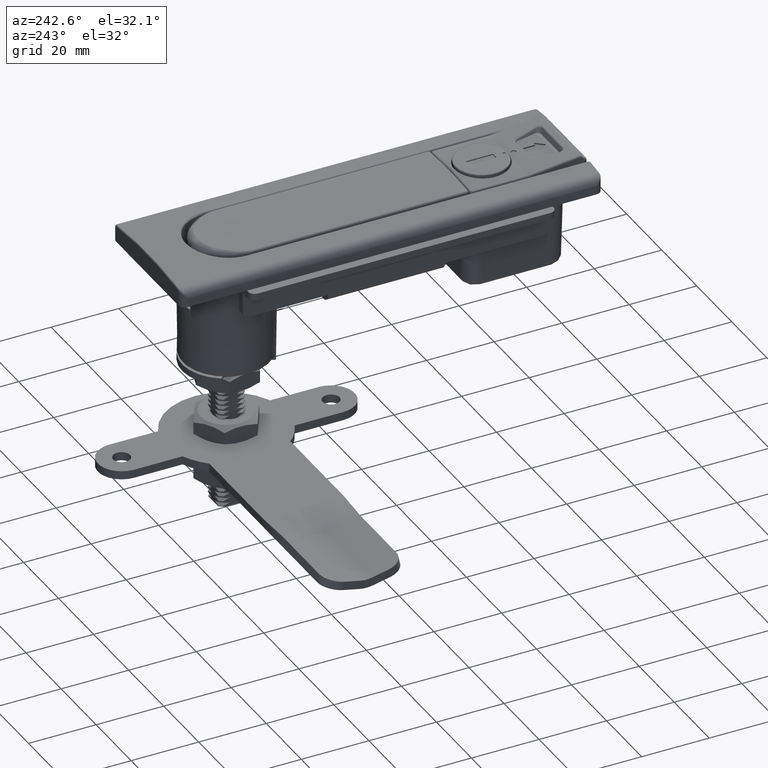
[diagram: clean part render]
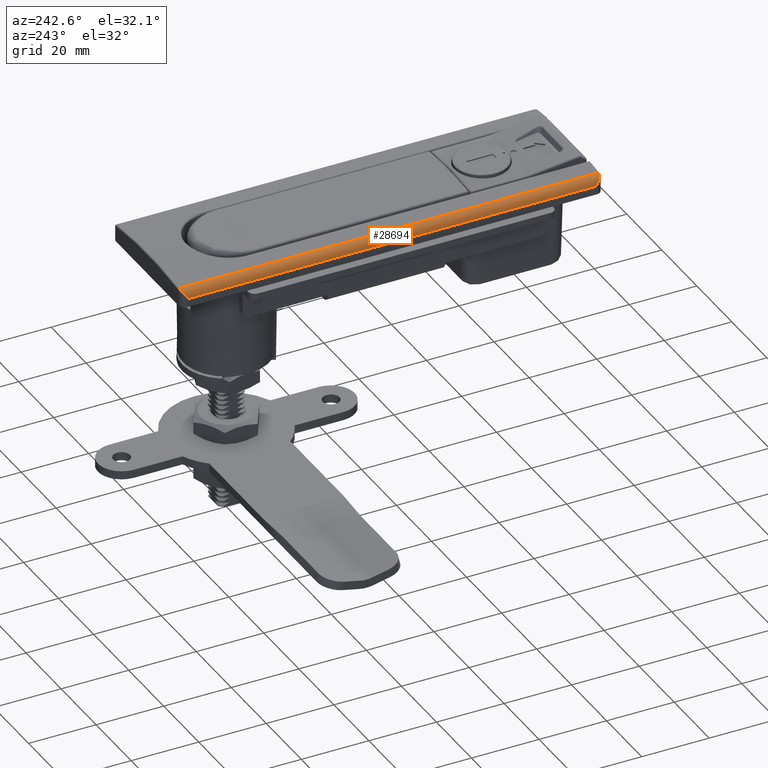
[diagram: same view with one face highlighted and labeled with its STEP entity id]
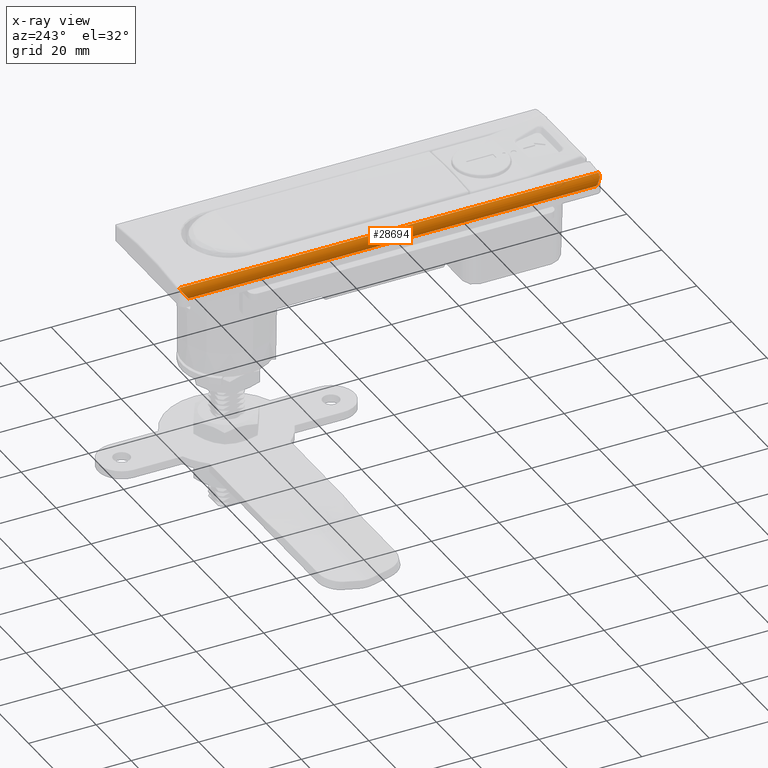
[diagram: x-ray of the same camera — body ghosted, the highlighted face saturated]
A machine part, auxiliary view. The second image highlights one B-rep face of the part: STEP entity #28694.
The next image is the same camera in x-ray: the body ghosted, the highlighted face saturated — about 0% of this face is hidden behind the body in this view.
In plain terms, the highlighted cylindrical surface (edge-blend (fillet) strip) has radius 2.5 mm, axis along (0, 1, -0).
Its self-contained STEP definition (entity closure, byte-faithful):
#407=CYLINDRICAL_SURFACE('',#30545,2.5);
#1561=CIRCLE('',#30531,2.5);
#1570=CIRCLE('',#30543,2.5);
#2433=LINE('',#41385,#4205);
#2434=LINE('',#41386,#4206);
#4205=VECTOR('',#33082,124.);
#4206=VECTOR('',#33083,120.80000002343);
#6367=FACE_OUTER_BOUND('',#8122,.T.);
#8122=EDGE_LOOP('',(#19587,#19588,#19589,#19590,#19591,#19592));
#9921=B_SPLINE_CURVE_WITH_KNOTS('',3,(#40942,#40943,#40944,#40945,#40946,
#40947,#40948,#40949,#40950,#40951,#40952,#40953,#40954,#40955,#40956,#40957,
#40958,#40959,#40960,#40961,#40962,#40963,#40964,#40965,#40966,#40967,#40968,
#40969,#40970,#40971,#40972,#40973,#40974,#40975,#40976,#40977,#40978,#40979,
#40980,#40981,#40982,#40983,#40984,#40985,#40986,#40987,#40988,#40989,#40990,
#40991,#40992,#40993,#40994,#40995,#40996,#40997,#40998,#40999,#41000,#41001,
#41002,#41003,#41004,#41005,#41006,#41007,#41008,#41009,#41010,#41011,#41012,
#41013,#41014,#41015,#41016,#41017),.UNSPECIFIED.,.F.,.F.,(4,3,3,3,3,3,
3,3,3,3,3,3,3,3,3,3,3,3,3,3,3,3,3,3,3,4),(0.,0.00267370429320417,0.0240881910586286,
0.0402317062052736,0.0891005600155095,0.105571979903791,0.179817606029806,
0.251578206848675,0.321912649484323,0.390348559496873,0.433620309179491,
0.49036619296237,0.552950008765032,0.615295061209573,0.673192660030244,
0.677640113654113,0.73062078443027,0.741658888262315,0.785493167539653,
0.791408199910672,0.836676604003531,0.879040479199777,0.882695041603326,
0.925146933560446,0.971001925833867,1.),.UNSPECIFIED.);
#9926=B_SPLINE_CURVE_WITH_KNOTS('',3,(#41336,#41337,#41338,#41339,#41340,
#41341,#41342,#41343,#41344,#41345,#41346,#41347,#41348,#41349,#41350,#41351,
#41352,#41353,#41354,#41355,#41356,#41357,#41358,#41359,#41360,#41361,#41362,
#41363,#41364,#41365,#41366,#41367,#41368,#41369,#41370,#41371,#41372,#41373,
#41374,#41375,#41376,#41377,#41378,#41379,#41380,#41381,#41382,#41383),
 .UNSPECIFIED.,.F.,.F.,(4,2,2,2,2,2,2,2,2,2,2,2,2,2,2,2,2,2,2,2,2,2,2,4),
(0.,0.043524044894115,0.0879857273819441,0.134096158527048,0.163323395996472,
0.21307270765343,0.258341111737674,0.311321782523425,0.322359886345891,
0.380813182931018,0.440998701532539,0.504229142447314,0.509633807037672,
0.566379690820509,0.634495720765521,0.704754598948782,0.776384839238372,
0.850204024916278,0.894428020096202,0.943217987665878,0.97327586169809,
0.989062535118109,0.997326295706797,1.),.UNSPECIFIED.);
#11815=VERTEX_POINT('',#40906);
#11817=VERTEX_POINT('',#40912);
#11819=VERTEX_POINT('',#40941);
#11826=VERTEX_POINT('',#41228);
#11828=VERTEX_POINT('',#41234);
#11829=VERTEX_POINT('',#41262);
#14838=EDGE_CURVE('',#11817,#11815,#1561,.T.);
#14839=EDGE_CURVE('',#11819,#11817,#9921,.T.);
#14851=EDGE_CURVE('',#11826,#11828,#1570,.T.);
#14854=EDGE_CURVE('',#11828,#11829,#9926,.T.);
#14855=EDGE_CURVE('',#11826,#11815,#2433,.T.);
#14856=EDGE_CURVE('',#11819,#11829,#2434,.T.);
#19587=ORIENTED_EDGE('',*,*,#14839,.T.);
#19588=ORIENTED_EDGE('',*,*,#14838,.T.);
#19589=ORIENTED_EDGE('',*,*,#14855,.F.);
#19590=ORIENTED_EDGE('',*,*,#14851,.T.);
#19591=ORIENTED_EDGE('',*,*,#14854,.T.);
#19592=ORIENTED_EDGE('',*,*,#14856,.F.);
#28694=ADVANCED_FACE('',(#6367),#407,.T.);
#30531=AXIS2_PLACEMENT_3D('',#40916,#33052,#33053);
#30543=AXIS2_PLACEMENT_3D('',#41236,#33076,#33077);
#30545=AXIS2_PLACEMENT_3D('',#41384,#33080,#33081);
#33052=DIRECTION('center_axis',(-1.,0.,0.));
#33053=DIRECTION('ref_axis',(0.,0.,-1.));
#33076=DIRECTION('center_axis',(1.,0.,0.));
#33077=DIRECTION('ref_axis',(0.,0.,-1.));
#33080=DIRECTION('center_axis',(-1.,0.,0.));
#33081=DIRECTION('ref_axis',(0.,0.,1.));
#33082=DIRECTION('',(1.,0.,0.));
#33083=DIRECTION('',(-1.,0.,0.));
#40906=CARTESIAN_POINT('',(100.95,17.5245283018868,-36.2577263657066));
#40912=CARTESIAN_POINT('',(100.95,17.7952380952381,-36.2069841114387));
#40916=CARTESIAN_POINT('Origin',(100.95,17.2,-33.7788795811564));
#40941=CARTESIAN_POINT('',(99.35,19.7,-33.7788795811564));
#40942=CARTESIAN_POINT('Ctrl Pts',(99.35,19.7,-33.7788795811564));
#40943=CARTESIAN_POINT('Ctrl Pts',(99.3519727470466,19.7,-33.7815701366174));
#40944=CARTESIAN_POINT('Ctrl Pts',(99.3539455167465,19.6999958274845,-33.7842606761443));
#40945=CARTESIAN_POINT('Ctrl Pts',(99.3559318660533,19.6999873629446,-33.7869696920528));
#40946=CARTESIAN_POINT('Ctrl Pts',(99.3718411238753,19.6999195679464,-33.8086669999666));
#40947=CARTESIAN_POINT('Ctrl Pts',(99.387764350434,19.6995786182318,-33.8303805302545));
#40948=CARTESIAN_POINT('Ctrl Pts',(99.4036760346493,19.6989626433604,-33.8520775945645));
#40949=CARTESIAN_POINT('Ctrl Pts',(99.4156712095958,19.698498284827,-33.868434133489));
#40950=CARTESIAN_POINT('Ctrl Pts',(99.4276645816905,19.6978775535308,-33.8847878054899));
#40951=CARTESIAN_POINT('Ctrl Pts',(99.4396511362248,19.6970998086625,-33.9011327228796));
#40952=CARTESIAN_POINT('Ctrl Pts',(99.4759362436445,19.6947454577096,-33.9506112516386));
#40953=CARTESIAN_POINT('Ctrl Pts',(99.5121503983018,19.6909487907334,-33.9999979795691));
#40954=CARTESIAN_POINT('Ctrl Pts',(99.548077654971,19.685728804776,-34.0490257420301));
#40955=CARTESIAN_POINT('Ctrl Pts',(99.5601870638048,19.6839693900607,-34.0655507226408));
#40956=CARTESIAN_POINT('Ctrl Pts',(99.5722639104622,19.6820487104917,-34.0820349641644));
#40957=CARTESIAN_POINT('Ctrl Pts',(99.5843000608117,19.6799688172803,-34.0984683874576));
#40958=CARTESIAN_POINT('Ctrl Pts',(99.6385535207385,19.6705936101157,-34.1725427423143));
#40959=CARTESIAN_POINT('Ctrl Pts',(99.6927498151729,19.6578474304929,-34.246635642441));
#40960=CARTESIAN_POINT('Ctrl Pts',(99.7465706541005,19.6416137461531,-34.3204116845495));
#40961=CARTESIAN_POINT('Ctrl Pts',(99.7985900920061,19.6259234085195,-34.3917184184809));
#40962=CARTESIAN_POINT('Ctrl Pts',(99.850258225888,19.6069750567308,-34.4627287659914));
#40963=CARTESIAN_POINT('Ctrl Pts',(99.9012936773047,19.5847115404412,-34.5331407475214));
#40964=CARTESIAN_POINT('Ctrl Pts',(99.9513148586925,19.5628904855521,-34.6021533731024));
#40965=CARTESIAN_POINT('Ctrl Pts',(100.000727955064,19.5378846846624,-34.6705906517546));
#40966=CARTESIAN_POINT('Ctrl Pts',(100.049280070829,19.5096882922019,-34.73817593817));
#40967=CARTESIAN_POINT('Ctrl Pts',(100.096521622776,19.4822530029639,-34.8039368997413));
#40968=CARTESIAN_POINT('Ctrl Pts',(100.14294789565,19.4517971981706,-34.8688908452205));
#40969=CARTESIAN_POINT('Ctrl Pts',(100.188340516647,19.4183603500899,-34.9327972359028));
#40970=CARTESIAN_POINT('Ctrl Pts',(100.217042087692,19.3972183660049,-34.9732049887947));
#40971=CARTESIAN_POINT('Ctrl Pts',(100.245330697053,19.3748854501712,-35.0131942567875));
#40972=CARTESIAN_POINT('Ctrl Pts',(100.273154757108,19.3513808285375,-35.0527081379293));
#40973=CARTESIAN_POINT('Ctrl Pts',(100.309642786593,19.3205572418471,-35.1045260127214));
#40974=CARTESIAN_POINT('Ctrl Pts',(100.345489979041,19.2875675334761,-35.155778903215));
#40975=CARTESIAN_POINT('Ctrl Pts',(100.380564114505,19.2524162865354,-35.2063203974625));
#40976=CARTESIAN_POINT('Ctrl Pts',(100.419246624793,19.2136487316553,-35.2620615253737));
#40977=CARTESIAN_POINT('Ctrl Pts',(100.456970396398,19.1721314071382,-35.3169246286644));
#40978=CARTESIAN_POINT('Ctrl Pts',(100.493363634751,19.1279024167561,-35.3705177683009));
#40979=CARTESIAN_POINT('Ctrl Pts',(100.529618029352,19.0838421642839,-35.4239064448853));
#40980=CARTESIAN_POINT('Ctrl Pts',(100.564551364829,19.0370908764082,-35.4760341018982));
#40981=CARTESIAN_POINT('Ctrl Pts',(100.597825162736,18.9877252291389,-35.5265369702694));
#40982=CARTESIAN_POINT('Ctrl Pts',(100.62872533728,18.9418811351965,-35.5734371603823));
#40983=CARTESIAN_POINT('Ctrl Pts',(100.658194195068,18.893782812859,-35.6189358982365));
#40984=CARTESIAN_POINT('Ctrl Pts',(100.685990503208,18.8435215710982,-35.6627683915833));
#40985=CARTESIAN_POINT('Ctrl Pts',(100.688125700416,18.8396607107799,-35.666135422088));
#40986=CARTESIAN_POINT('Ctrl Pts',(100.690251044419,18.8357871015592,-35.6694926352846));
#40987=CARTESIAN_POINT('Ctrl Pts',(100.692366434023,18.8319007916637,-35.6728399186729));
#40988=CARTESIAN_POINT('Ctrl Pts',(100.717566193178,18.785604793431,-35.7127147176448));
#40989=CARTESIAN_POINT('Ctrl Pts',(100.741473046658,18.7372748235071,-35.7513752756724));
#40990=CARTESIAN_POINT('Ctrl Pts',(100.763854022977,18.6869968757842,-35.7885687961265));
#40991=CARTESIAN_POINT('Ctrl Pts',(100.768516922424,18.6765218629296,-35.7963177720197));
#40992=CARTESIAN_POINT('Ctrl Pts',(100.773113681188,18.6659624210589,-35.8040031581987));
#40993=CARTESIAN_POINT('Ctrl Pts',(100.777642345948,18.6553195283588,-35.8116228163388));
#40994=CARTESIAN_POINT('Ctrl Pts',(100.795626481528,18.6130547029837,-35.841881837996));
#40995=CARTESIAN_POINT('Ctrl Pts',(100.812495856091,18.5693783915646,-35.8710579004385));
#40996=CARTESIAN_POINT('Ctrl Pts',(100.828084321061,18.5245284132631,-35.8989778880777));
#40997=CARTESIAN_POINT('Ctrl Pts',(100.830187840873,18.5184763216611,-35.9027454333279));
#40998=CARTESIAN_POINT('Ctrl Pts',(100.832268036693,18.5124028673336,-35.9064901397811));
#40999=CARTESIAN_POINT('Ctrl Pts',(100.834324500159,18.5063086431511,-35.9102116125432));
#41000=CARTESIAN_POINT('Ctrl Pts',(100.850062844998,18.4596688640891,-35.9386924596878));
#41001=CARTESIAN_POINT('Ctrl Pts',(100.864411226591,18.4118123965668,-35.9658101222043));
#41002=CARTESIAN_POINT('Ctrl Pts',(100.877212655435,18.3630124801876,-35.9914002265858));
#41003=CARTESIAN_POINT('Ctrl Pts',(100.889192714037,18.3173436829658,-36.0153484087672));
#41004=CARTESIAN_POINT('Ctrl Pts',(100.899887586118,18.2704952973437,-36.0381437429174));
#41005=CARTESIAN_POINT('Ctrl Pts',(100.90913633042,18.2226873341583,-36.0595989968257));
#41006=CARTESIAN_POINT('Ctrl Pts',(100.909934182671,18.2185631320158,-36.0614498559345));
#41007=CARTESIAN_POINT('Ctrl Pts',(100.91072127319,18.214431800613,-36.0632907550419));
#41008=CARTESIAN_POINT('Ctrl Pts',(100.911497498713,18.2102934878997,-36.0651215812381));
#41009=CARTESIAN_POINT('Ctrl Pts',(100.92051423955,18.1622222868123,-36.0863887063526));
#41010=CARTESIAN_POINT('Ctrl Pts',(100.928064598629,18.113208055959,-36.1062945055372));
#41011=CARTESIAN_POINT('Ctrl Pts',(100.934014679674,18.0634876056826,-36.1246767065021));
#41012=CARTESIAN_POINT('Ctrl Pts',(100.940441741172,18.0097813806324,-36.1445324925308));
#41013=CARTESIAN_POINT('Ctrl Pts',(100.944999603927,17.9552520911602,-36.1626095954783));
#41014=CARTESIAN_POINT('Ctrl Pts',(100.947559900103,17.9002071379581,-36.178741958191));
#41015=CARTESIAN_POINT('Ctrl Pts',(100.949178996623,17.8653974573479,-36.1889438452098));
#41016=CARTESIAN_POINT('Ctrl Pts',(100.95,17.8303817339401,-36.1983688181925));
#41017=CARTESIAN_POINT('Ctrl Pts',(100.95,17.7952380952381,-36.2069841114387));
#41228=CARTESIAN_POINT('',(-23.05,17.5245283018868,-36.2577263657066));
#41234=CARTESIAN_POINT('',(-23.05,17.7952380952381,-36.2069841114387));
#41236=CARTESIAN_POINT('Origin',(-23.05,17.2,-33.7788795811564));
#41262=CARTESIAN_POINT('',(-21.4500000234297,19.7,-33.778879609157));
#41336=CARTESIAN_POINT('Ctrl Pts',(-23.05,17.7952380952381,-36.2069841114387));
#41337=CARTESIAN_POINT('Ctrl Pts',(-23.05,17.8479861949859,-36.1940531696157));
#41338=CARTESIAN_POINT('Ctrl Pts',(-23.0481486231335,17.9004462197729,-36.1792964383043));
#41339=CARTESIAN_POINT('Ctrl Pts',(-23.0408332102541,18.005379856585,-36.1460107428849));
#41340=CARTESIAN_POINT('Ctrl Pts',(-23.0352923736352,18.0578288792188,-36.1274075341288));
#41341=CARTESIAN_POINT('Ctrl Pts',(-23.0205133385412,18.162928245444,-36.0862114168628));
#41342=CARTESIAN_POINT('Ctrl Pts',(-23.0111458595718,18.2155131791919,-36.0634963806744));
#41343=CARTESIAN_POINT('Ctrl Pts',(-22.9931315847427,18.2994364780654,-36.0238962074058));
#41344=CARTESIAN_POINT('Ctrl Pts',(-22.9854775578724,18.331504783697,-36.0079224858189));
#41345=CARTESIAN_POINT('Ctrl Pts',(-22.9631439797303,18.4166423602597,-35.9632773584296));
#41346=CARTESIAN_POINT('Ctrl Pts',(-22.9472065952119,18.4691332310838,-35.9333086948271));
#41347=CARTESIAN_POINT('Ctrl Pts',(-22.9135989343941,18.5665189445033,-35.8729657142134));
#41348=CARTESIAN_POINT('Ctrl Pts',(-22.896214867956,18.6116719259516,-35.8428718215057));
#41349=CARTESIAN_POINT('Ctrl Pts',(-22.8559056690316,18.7064032654708,-35.7750499949943));
#41350=CARTESIAN_POINT('Ctrl Pts',(-22.8325979760674,18.755561529542,-35.7369607505673));
#41351=CARTESIAN_POINT('Ctrl Pts',(-22.8028107405204,18.8125218230935,-35.6894024922508));
#41352=CARTESIAN_POINT('Ctrl Pts',(-22.7976166028335,18.8222553912731,-35.6811475136764));
#41353=CARTESIAN_POINT('Ctrl Pts',(-22.7645636713231,18.8829789296899,-35.6288462567132));
#41354=CARTESIAN_POINT('Ctrl Pts',(-22.7350385319976,18.9318607140452,-35.5831346948406));
#41355=CARTESIAN_POINT('Ctrl Pts',(-22.6721164738712,19.02642012125,-35.4874188181386));
#41356=CARTESIAN_POINT('Ctrl Pts',(-22.6386310834001,19.0719596417094,-35.4373278516025));
#41357=CARTESIAN_POINT('Ctrl Pts',(-22.5673764093922,19.1602114525251,-35.3321323037977));
#41358=CARTESIAN_POINT('Ctrl Pts',(-22.5294765279315,19.2026638551077,-35.2769028190463));
#41359=CARTESIAN_POINT('Ctrl Pts',(-22.4872381307645,19.2456999624144,-35.215941336259));
#41360=CARTESIAN_POINT('Ctrl Pts',(-22.4839046905189,19.2490683661776,-35.2111341355866));
#41361=CARTESIAN_POINT('Ctrl Pts',(-22.4454899790476,19.2875675334773,-35.1557789032132));
#41362=CARTESIAN_POINT('Ctrl Pts',(-22.4096427698019,19.320557298134,-35.1045259193665));
#41363=CARTESIAN_POINT('Ctrl Pts',(-22.3293542903696,19.3883805281299,-34.9905075366919));
#41364=CARTESIAN_POINT('Ctrl Pts',(-22.2844014363691,19.4224743550787,-34.9271284245841));
#41365=CARTESIAN_POINT('Ctrl Pts',(-22.1911550026802,19.4856953373413,-34.7964414924963));
#41366=CARTESIAN_POINT('Ctrl Pts',(-22.1428010772137,19.5146323605934,-34.7290730590552));
#41367=CARTESIAN_POINT('Ctrl Pts',(-22.0436053943317,19.5666349884448,-34.591512129269));
#41368=CARTESIAN_POINT('Ctrl Pts',(-21.9927338855039,19.5895749750907,-34.5212905456443));
#41369=CARTESIAN_POINT('Ctrl Pts',(-21.8883792457597,19.6294825370437,-34.377723872205));
#41370=CARTESIAN_POINT('Ctrl Pts',(-21.8348642793584,19.6462461603301,-34.3043493492702));
#41371=CARTESIAN_POINT('Ctrl Pts',(-21.7488997829231,19.6676039681626,-34.1867287108007));
#41372=CARTESIAN_POINT('Ctrl Pts',(-21.7166065507676,19.6743836441149,-34.1425983788787));
#41373=CARTESIAN_POINT('Ctrl Pts',(-21.6486428731526,19.6861293432853,-34.049795365396));
#41374=CARTESIAN_POINT('Ctrl Pts',(-21.6126351190908,19.6908896141203,-34.0006698401895));
#41375=CARTESIAN_POINT('Ctrl Pts',(-21.5542100495291,19.6962601098932,-33.9209861993351));
#41376=CARTESIAN_POINT('Ctrl Pts',(-21.5318827740584,19.6977630109922,-33.8905409095663));
#41377=CARTESIAN_POINT('Ctrl Pts',(-21.4978224523025,19.6992267015613,-33.8440959897625));
#41378=CARTESIAN_POINT('Ctrl Pts',(-21.4860879340078,19.6995811993356,-33.8280946090082));
#41379=CARTESIAN_POINT('Ctrl Pts',(-21.4682125725398,19.6998943923038,-33.8037179125879));
#41380=CARTESIAN_POINT('Ctrl Pts',(-21.4620711808512,19.6999612011367,-33.7953425931055));
#41381=CARTESIAN_POINT('Ctrl Pts',(-21.4539455167462,19.6999958274847,-33.7842606761447));
#41382=CARTESIAN_POINT('Ctrl Pts',(-21.4519727909889,19.6999999999377,-33.7815701965486));
#41383=CARTESIAN_POINT('Ctrl Pts',(-21.4500000439423,19.7,-33.7788796410877));
#41384=CARTESIAN_POINT('Origin',(142.95,17.2,-33.7788795811564));
#41385=CARTESIAN_POINT('',(142.95,17.5245283018868,-36.2577263657066));
#41386=CARTESIAN_POINT('',(97.35,19.7,-33.7788795811564));